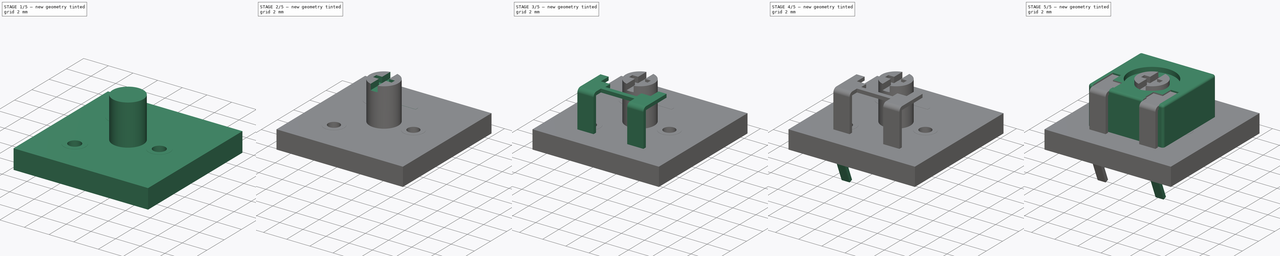
[diagram: build sequence overview — one tinted view per stage of 5, left to right]
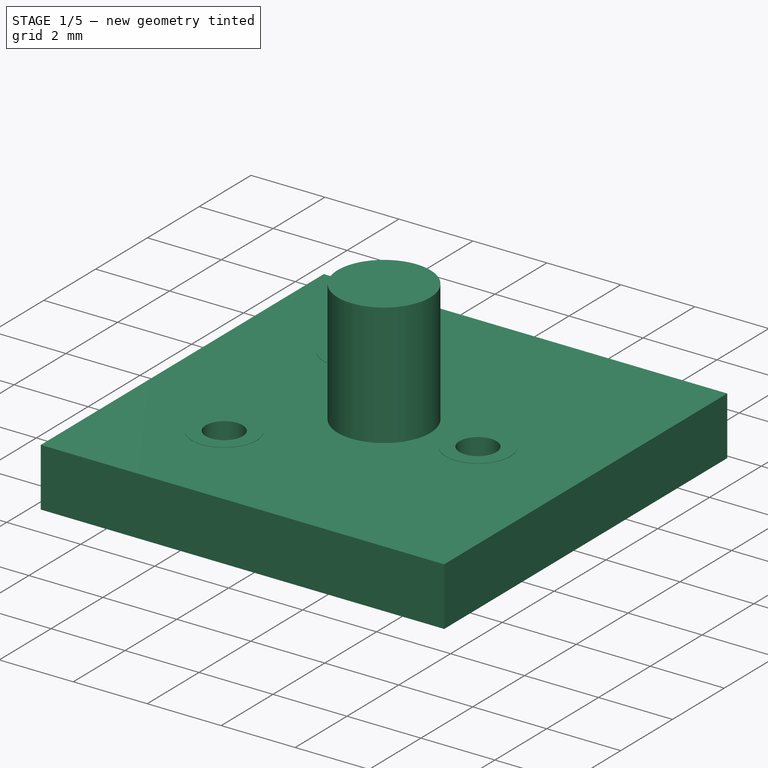
[diagram: stage 1 of 5 — iso view after this stage's code; geometry added in this stage tinted green]
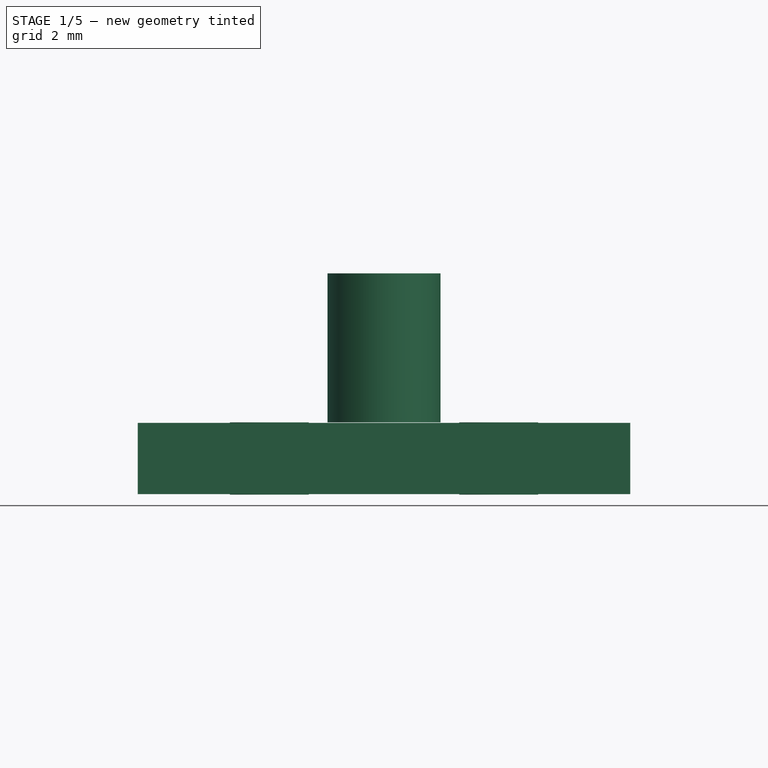
[diagram: stage 1 of 5 — front view after this stage's code; geometry added in this stage tinted green]
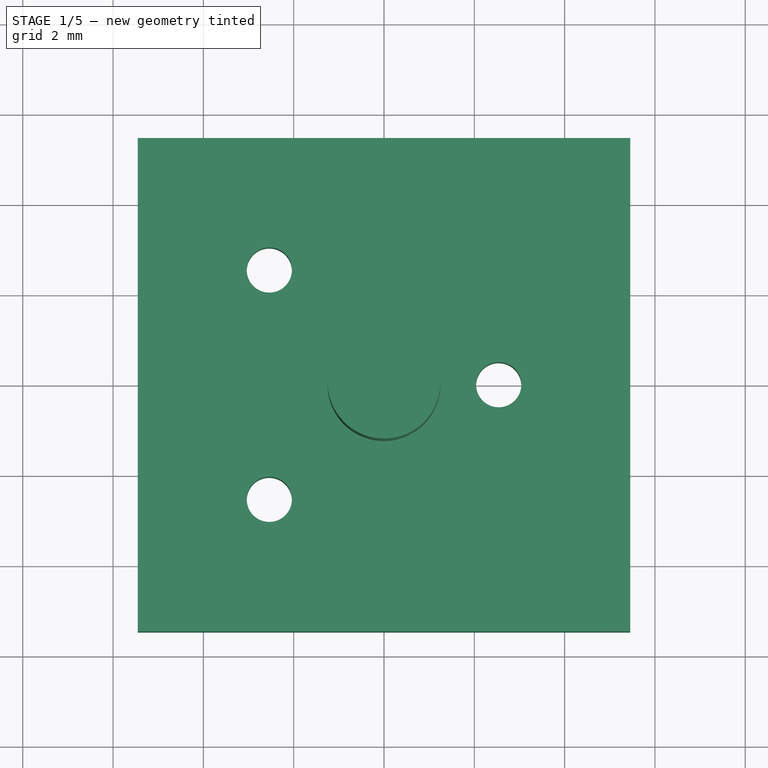
[diagram: stage 1 of 5 — top view after this stage's code; geometry added in this stage tinted green]
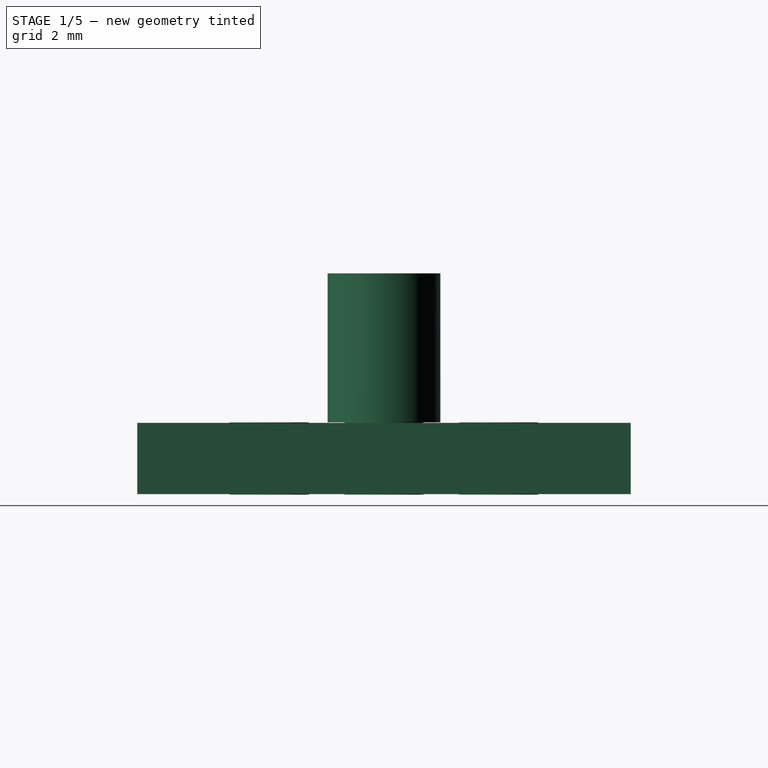
[diagram: stage 1 of 5 — right view after this stage's code; geometry added in this stage tinted green]
FCSTD DOCUMENT  (FreeCAD 0.17R13522 (Git))
Label: RVAR-ACP-CA6-V5
License: All rights reserved
LicenseURL: http://fr.wikipedia.org/wiki/<copyright redacted>
objects: PartDesign::FeaturePython×13, Sketcher::SketchObject×7, Part::Part2DObjectPython×6, Part::FeaturePython×5, PartDesign::Pad×4, PartDesign::Body×4, PartDesign::Pocket×3, PartDesign::Fillet×1, App::DocumentObjectGroup×1, Part::Feature×1
note: 51 computed .brp shape members not serialized (recipe doc carries the construction recipe); baked Part::Feature solids carry a one-line shape summary decoded from their .brp

FEATURE [PartDesign::Body] Body002
  Group = -> [Sketch004,Pad002,Bend010,Bend011,Bend012]
  Origin = -> Origin002
  Tip = -> Bend012
FEATURE [Sketcher::SketchObject] Sketch005
  MapMode = 5
  Support = -> [XY_Plane003]
  sketch-geometry (1):
    g0: Circle CenterX=0 CenterY=0 CenterZ=0 NormalX=0 NormalY=0 NormalZ=1 AngleXU=0 Radius=1.25
  constraints (2):
    c: Coincident(g0,g-1)
    c: Radius(g0) = 1.25
FEATURE [PartDesign::Pad] Pad003
  Length = 3.3
  Length2 = 100
  Profile = -> Sketch005
  Type = 0
FEATURE [PartDesign::Body] Body003
  Group = -> [Sketch005,Pad003,Sketch006,Pocket002]
  Origin = -> Origin003
  Tip = -> Pocket002
FEATURE [Part::FeaturePython] Filk_lines  label="FrontSilk"  # a2plus imported part (geometry in sourceFile) (typed FeaturePython)
  Placement = pos=(0,0,0) rot=(0,0,-1;1.5708rad)
  fixedPosition = true
FEATURE [Part::FeaturePython] TopPads  # a2plus imported part (geometry in sourceFile) (typed FeaturePython)
  Placement = pos=(0,0,0) rot=(0,0,-1;1.5708rad)
  fixedPosition = true
FEATURE [Part::FeaturePython] BotPads  # a2plus imported part (geometry in sourceFile) (typed FeaturePython)
  Placement = pos=(0,0,0) rot=(0,0,-1;1.5708rad)
  fixedPosition = true
FEATURE [Part::FeaturePython] THPs  label="PTHs"  # a2plus imported part (geometry in sourceFile) (typed FeaturePython)
  Placement = pos=(0,0,0) rot=(0,0,-1;1.5708rad)
  fixedPosition = true
FEATURE [Part::FeaturePython] newPCB  label="Pcb"  # a2plus imported part (geometry in sourceFile) (typed FeaturePython)
  Placement = pos=(0,0,0) rot=(0,0,-1;1.5708rad)
  fixedPosition = true
FEATURE [App::DocumentObjectGroup] TRIM_ACP_6_L_fp
  Group = -> [Filk_lines,TopPads,BotPads,THPs,newPCB]
FEATURE [Part::Feature] Shape001  label="RVAR-ACP-CA6-V5"
  shape: bbox 6.9 x 6.5 x 7.672 mm, 182 faces (baked)
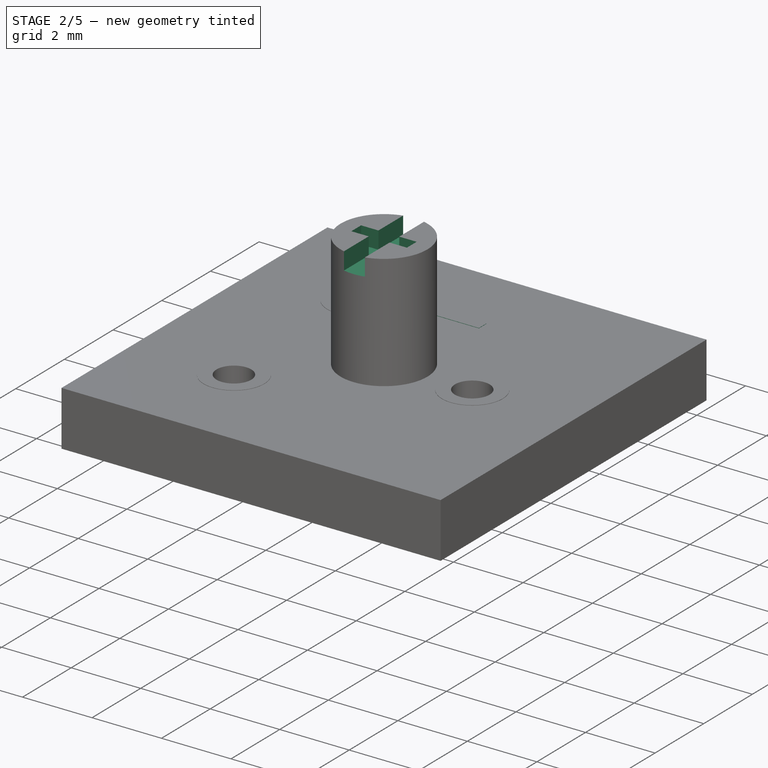
[diagram: stage 2 of 5 — iso view after this stage's code; geometry added in this stage tinted green]
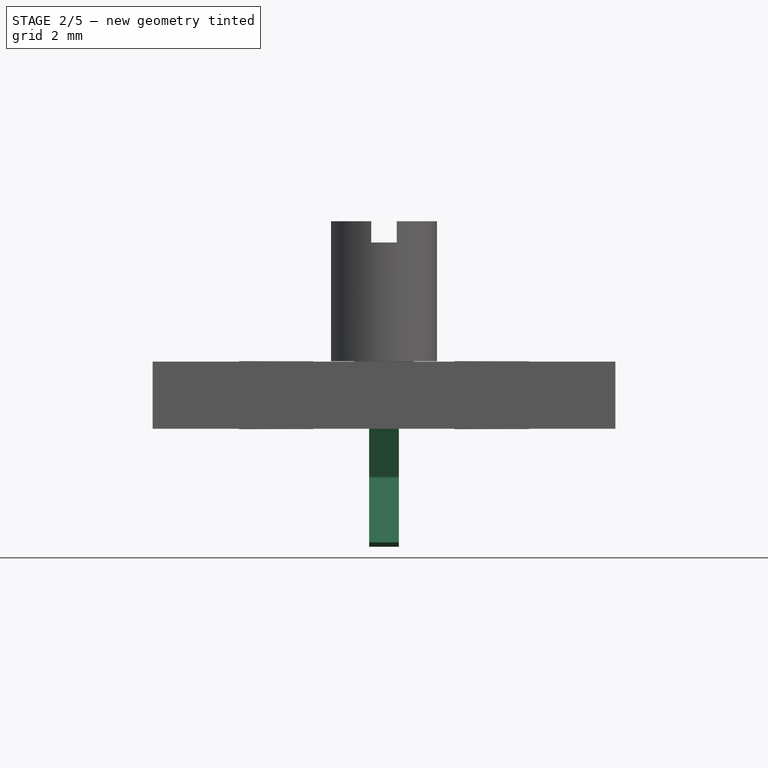
[diagram: stage 2 of 5 — front view after this stage's code; geometry added in this stage tinted green]
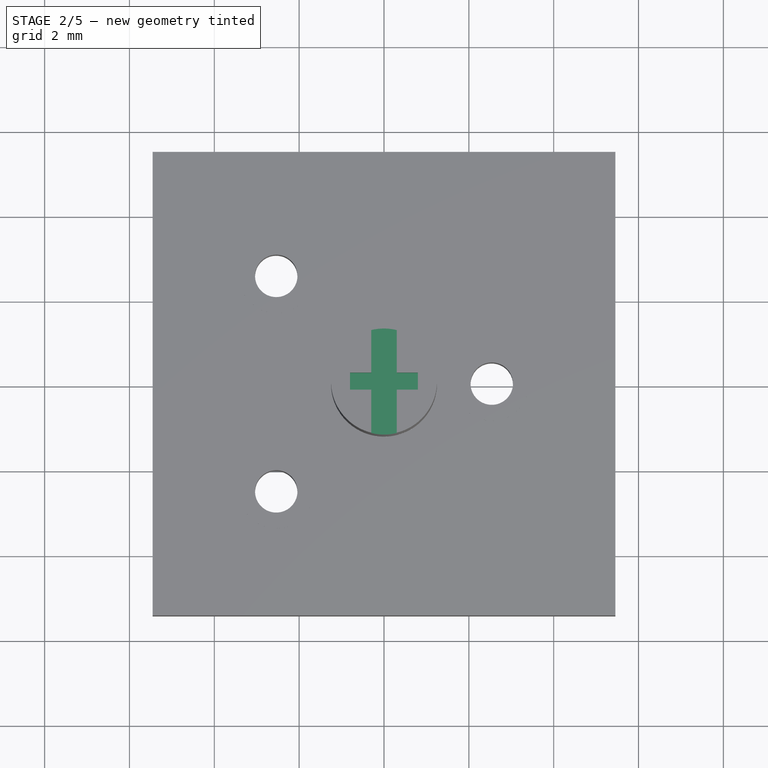
[diagram: stage 2 of 5 — top view after this stage's code; geometry added in this stage tinted green]
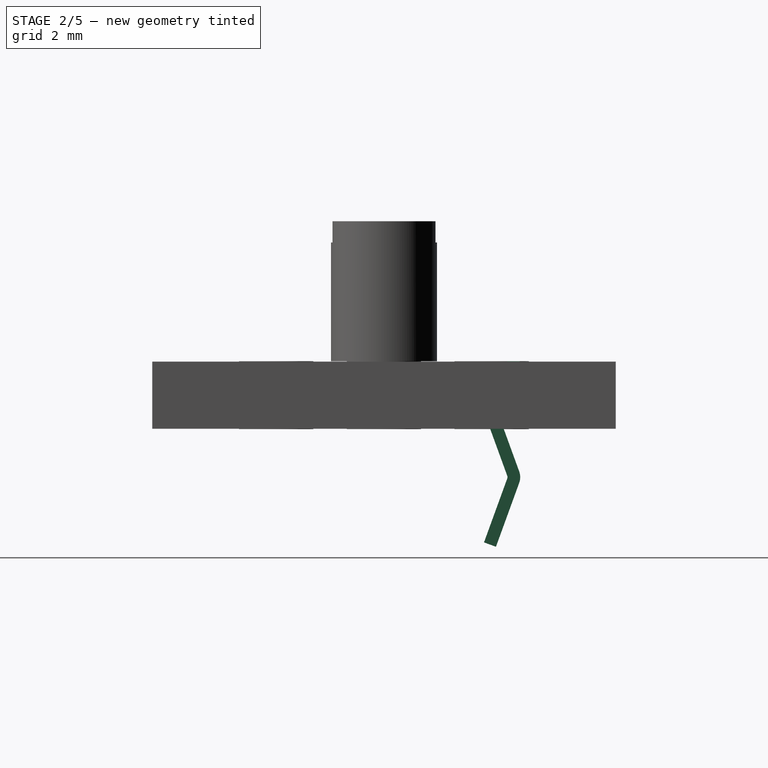
[diagram: stage 2 of 5 — right view after this stage's code; geometry added in this stage tinted green]
FEATURE [PartDesign::Body] Body001
  Group = -> [Sketch003,Pad001,Bend,Bend001,Bend002,Bend003,Bend004,Bend005,Bend006,Bend007,Bend008,Bend009]
  Origin = -> Origin001
  Tip = -> Bend009
FEATURE [Sketcher::SketchObject] Sketch004
  MapMode = 5
  Support = -> [XY_Plane002]
  sketch-geometry (4):
    g0: LineSegment StartX=-0.7 StartY=3.2 StartZ=0 EndX=0.7 EndY=3.2 EndZ=0
    g1: LineSegment StartX=0.7 StartY=3.2 StartZ=0 EndX=0.7 EndY=2.9 EndZ=0
    g2: LineSegment StartX=0.7 StartY=2.9 StartZ=0 EndX=-0.7 EndY=2.9 EndZ=0
    g3: LineSegment StartX=-0.7 StartY=2.9 StartZ=0 EndX=-0.7 EndY=3.2 EndZ=0
  constraints (12):
    c: Coincident(g0,g1)
    c: Coincident(g1,g2)
    c: Coincident(g2,g3)
    c: Coincident(g3,g0)
    c: Horizontal(g0)
    c: Horizontal(g2)
    c: Vertical(g1)
    c: Vertical(g3)
    c: DistanceX(g0,g0) = 1.4
    c: DistanceY(g3,g3) = 0.3
    c: Symmetric(g0,g0,g-2)
    c: DistanceY(g-1,g0) = 3.2
FEATURE [PartDesign::Pad] Pad002
  Length = 0.2
  Length2 = 100
  Profile = -> Sketch004
  Reversed = true
  Type = 0
FEATURE [PartDesign::FeaturePython] Bend010  # WARN: FeaturePython — macro-defined, semantics opaque (R4)
  BaseFeature = -> Pad002
  angle = 40
  baseObject = -> Pad002 [Face6]
  extend1 = 0
  extend2 = 0
  gap1 = 0
  gap2 = 0
  invert = false
  kfactor = 0.45
  length = 0.7
  miterangle1 = 0
  miterangle2 = 0
  radius = 0.1
  reliefType = 0
  reliefd = 1
  reliefw = 0.5
  unfold = false
FEATURE [PartDesign::FeaturePython] Bend011  # WARN: FeaturePython — macro-defined, semantics opaque (R4)
  BaseFeature = -> Bend010
  angle = 60
  baseObject = -> Bend010 [Face1]
  extend1 = -0.35
  extend2 = -0.35
  gap1 = 0
  gap2 = 0
  invert = true
  kfactor = 0.45
  length = 1.6
  miterangle1 = 0
  miterangle2 = 0
  radius = 0.1
  reliefType = 0
  reliefd = 1
  reliefw = 0.5
  unfold = false
FEATURE [Part::Part2DObjectPython] Line  # Draft 2D object (typed FeaturePython)
  ChamferSize = 0
  Closed = false
  End = (0,-2.5,0)
  FilletRadius = 0
  Length = 2.5
  MakeFace = true
  Points = (2) [(0,0,0),(0,-2.5,0)]
  Start = (0,0,0)
  Subdivisions = 0
FEATURE [Part::Part2DObjectPython] Line001  # Draft 2D object (typed FeaturePython)
  ChamferSize = 0
  Closed = false
  End = (0,-2.5,-5)
  FilletRadius = 0
  Length = 5
  MakeFace = true
  Points = (2) [(0,-2.5,0),(0,-2.5,-5)]
  Start = (0,-2.5,0)
  Subdivisions = 0
FEATURE [Part::Part2DObjectPython] Line002  # Draft 2D object (typed FeaturePython)
  ChamferSize = 0
  Closed = false
  End = (0,2.50239,0)
  FilletRadius = 0
  Length = 2.50239
  MakeFace = true
  Points = (2) [(0,0,0),(0,2.50239,0)]
  Start = (0,0,0)
  Subdivisions = 0
FEATURE [Part::Part2DObjectPython] Line003  # Draft 2D object (typed FeaturePython)
  ChamferSize = 0
  Closed = false
  End = (0,2.50239,-5)
  FilletRadius = 0
  Length = 5
  MakeFace = true
  Points = (2) [(0,2.50239,0),(0,2.50239,-5)]
  Start = (0,2.50239,0)
  Subdivisions = 0
FEATURE [Part::Part2DObjectPython] Line004  # Draft 2D object (typed FeaturePython)
  ChamferSize = 0
  Closed = false
  End = (0,-5,-1.3)
  FilletRadius = 0
  Length = 4.6
  MakeFace = true
  Points = (2) [(0,-5,3.3),(0,-5,-1.3)]
  Start = (0,-5,3.3)
  Subdivisions = 0
FEATURE [Part::Part2DObjectPython] Line005  # Draft 2D object (typed FeaturePython)
  ChamferSize = 0
  Closed = false
  End = (0,5,-1.3)
  FilletRadius = 0
  Length = 10
  MakeFace = true
  Points = (2) [(0,-5,-1.3),(0,5,-1.3)]
  Start = (0,-5,-1.3)
  Subdivisions = 0
FEATURE [PartDesign::FeaturePython] Bend012  # WARN: FeaturePython — macro-defined, semantics opaque (R4)
  BaseFeature = -> Bend011
  angle = 40
  baseObject = -> Bend011 [Face1]
  extend1 = 0
  extend2 = 0
  gap1 = 0
  gap2 = 0
  invert = false
  kfactor = 0.45
  length = 1.6
  miterangle1 = 0
  miterangle2 = 0
  radius = 0.1
  reliefType = 0
  reliefd = 1
  reliefw = 0.5
  unfold = false
FEATURE [Sketcher::SketchObject] Sketch006
  MapMode = 5
  Placement = pos=(0,0,3.3) rot=(0,0,1;0rad)
  Support = -> [Pad003]
  sketch-geometry (12):
    g0: LineSegment StartX=-0.8 StartY=0.2 StartZ=0 EndX=-0.8 EndY=-0.2 EndZ=0
    g1: LineSegment StartX=-0.8 StartY=-0.2 StartZ=0 EndX=-0.3 EndY=-0.2 EndZ=0
    g2: LineSegment StartX=-0.3 StartY=-0.2 StartZ=0 EndX=-0.3 EndY=-1.4 EndZ=0
    g3: LineSegment StartX=-0.3 StartY=-1.4 StartZ=0 EndX=0.3 EndY=-1.4 EndZ=0
    g4: LineSegment StartX=0.3 StartY=-1.4 StartZ=0 EndX=0.3 EndY=-0.2 EndZ=0
    g5: LineSegment StartX=0.3 StartY=-0.2 StartZ=0 EndX=0.8 EndY=-0.2 EndZ=0
    g6: LineSegment StartX=0.8 StartY=-0.2 StartZ=0 EndX=0.8 EndY=0.2 EndZ=0
    g7: LineSegment StartX=0.8 StartY=0.2 StartZ=0 EndX=0.3 EndY=0.2 EndZ=0
    g8: LineSegment StartX=0.3 StartY=0.2 StartZ=0 EndX=0.3 EndY=1.4 EndZ=0
    g9: LineSegment StartX=0.3 StartY=1.4 StartZ=0 EndX=-0.3 EndY=1.4 EndZ=0
    g10: LineSegment StartX=-0.3 StartY=1.4 StartZ=0 EndX=-0.3 EndY=0.2 EndZ=0
    g11: LineSegment StartX=-0.3 StartY=0.2 StartZ=0 EndX=-0.8 EndY=0.2 EndZ=0
  constraints (36):
    c: Vertical(g0)
    c: Coincident(g0,g1)
    c: Horizontal(g1)
    c: Coincident(g1,g2)
    c: Vertical(g2)
    c: Coincident(g2,g3)
    c: Horizontal(g3)
    c: Coincident(g3,g4)
    c: Vertical(g4)
    c: Coincident(g4,g5)
    c: Horizontal(g5)
    c: Coincident(g5,g6)
    c: Vertical(g6)
    c: Coincident(g6,g7)
    c: Horizontal(g7)
    c: Coincident(g7,g8)
    c: Vertical(g8)
    c: Coincident(g8,g9)
    c: Horizontal(g9)
    c: Coincident(g9,g10)
    c: Vertical(g10)
    c: Coincident(g10,g11)
    c: Coincident(g11,g0)
    c: Horizontal(g11)
    c: Symmetric(g0,g0,g-1)
    c: Symmetric(g9,g8,g-2)
    c: Horizontal(g1,g4)
    c: Horizontal(g10,g7)
    c: Vertical(g10,g1)
    c: Vertical(g7,g4)
    c: DistanceY(g0,g0) = 0.4
    c: DistanceX(g9,g9) = 0.6
    c: Symmetric(g9,g2,g-1)
    c: DistanceY(g2,g9) = 2.8
    c: Symmetric(g5,g0,g-2)
    c: DistanceX(g0,g5) = 1.6
FEATURE [PartDesign::Pocket] Pocket002
  BaseFeature = -> Pad003
  Length = 0.5
  Length2 = 100
  Profile = -> Sketch006
  Type = 0
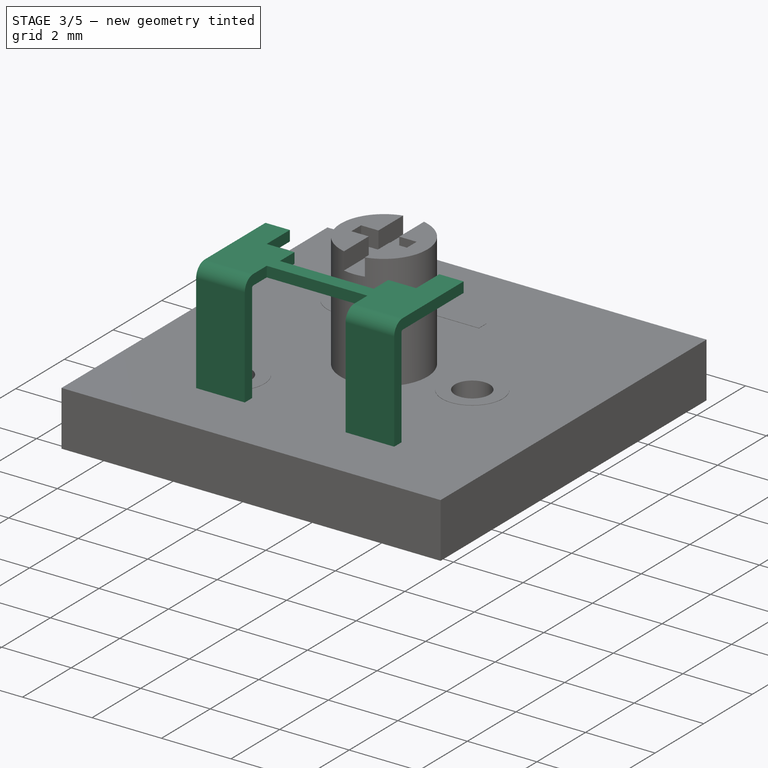
[diagram: stage 3 of 5 — iso view after this stage's code; geometry added in this stage tinted green]
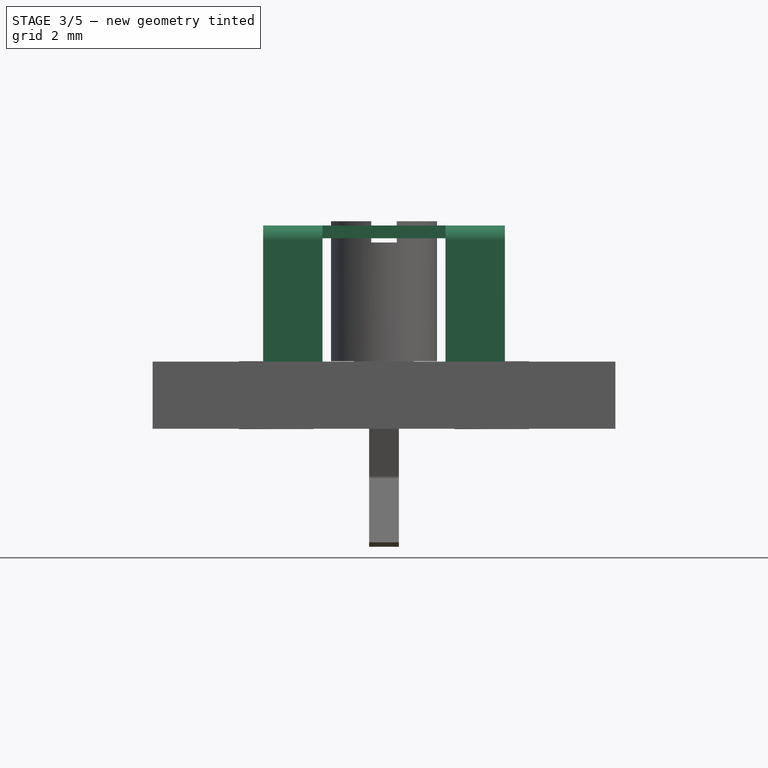
[diagram: stage 3 of 5 — front view after this stage's code; geometry added in this stage tinted green]
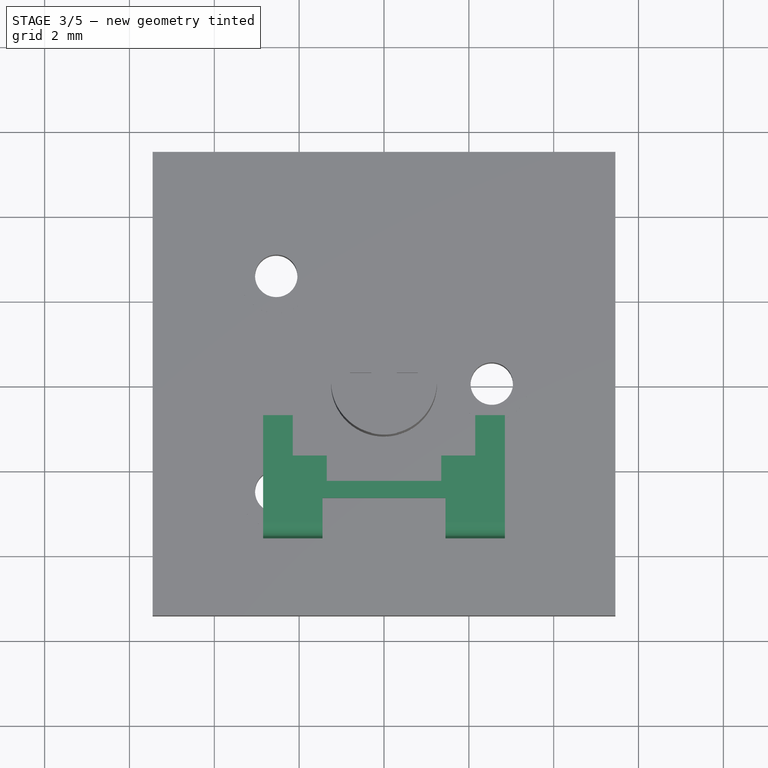
[diagram: stage 3 of 5 — top view after this stage's code; geometry added in this stage tinted green]
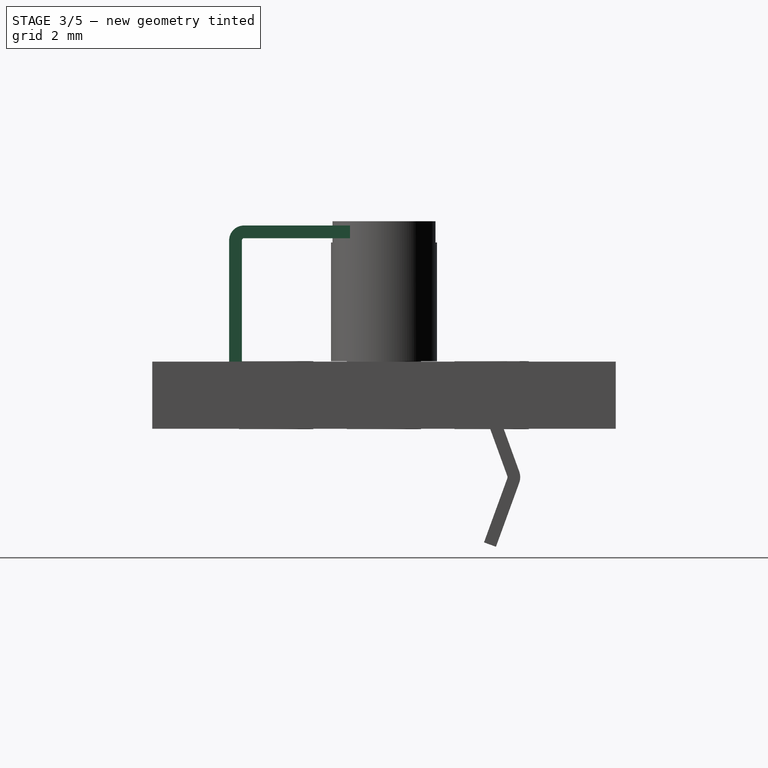
[diagram: stage 3 of 5 — right view after this stage's code; geometry added in this stage tinted green]
FEATURE [PartDesign::Body] Body
  Group = -> [Sketch,Pad,Sketch001,Pocket,Sketch002,Pocket001,Fillet]
  Origin = -> Origin
  Tip = -> Fillet
FEATURE [Sketcher::SketchObject] Sketch003
  MapMode = 2
  Placement = pos=(0,0,2.9) rot=(0,0,1;0rad)
  sketch-geometry (16):
    g0: LineSegment StartX=-2.85 StartY=-0.8 StartZ=0 EndX=-2.15 EndY=-0.8 EndZ=0
    g1: LineSegment StartX=-2.15 StartY=-0.8 StartZ=0 EndX=-2.15 EndY=-1.75 EndZ=0
    g2: LineSegment StartX=-2.15 StartY=-1.75 StartZ=0 EndX=-1.35 EndY=-1.75 EndZ=0
    g3: LineSegment StartX=-1.45 StartY=-2.75 StartZ=0 EndX=-1.45 EndY=-3.3 EndZ=0
    g4: LineSegment StartX=-1.45 StartY=-3.3 StartZ=0 EndX=-2.85 EndY=-3.3 EndZ=0
    g5: LineSegment StartX=-2.85 StartY=-3.3 StartZ=0 EndX=-2.85 EndY=-0.8 EndZ=0
    g6: LineSegment StartX=2.85 StartY=-3.3 StartZ=0 EndX=2.85 EndY=-0.8 EndZ=0
    g7: LineSegment StartX=2.85 StartY=-0.8 StartZ=0 EndX=2.15 EndY=-0.8 EndZ=0
    g8: LineSegment StartX=2.15 StartY=-0.8 StartZ=0 EndX=2.15 EndY=-1.75 EndZ=0
    g9: LineSegment StartX=2.15 StartY=-1.75 StartZ=0 EndX=1.35 EndY=-1.75 EndZ=0
    g10: LineSegment StartX=1.45 StartY=-2.75 StartZ=0 EndX=1.45 EndY=-3.3 EndZ=0
    g11: LineSegment StartX=1.45 StartY=-3.3 StartZ=0 EndX=2.85 EndY=-3.3 EndZ=0
    g12: LineSegment StartX=-1.45 StartY=-2.75 StartZ=0 EndX=1.45 EndY=-2.75 EndZ=0
    g13: LineSegment StartX=-1.35 StartY=-1.75 StartZ=0 EndX=-1.35 EndY=-2.35 EndZ=0
    g14: LineSegment StartX=-1.35 StartY=-2.35 StartZ=0 EndX=1.35 EndY=-2.35 EndZ=0
    g15: LineSegment StartX=1.35 StartY=-2.35 StartZ=0 EndX=1.35 EndY=-1.75 EndZ=0
  constraints (47):
    c: Horizontal(g0)
    c: Coincident(g0,g1)
    c: Vertical(g1)
    c: Coincident(g1,g2)
    c: Horizontal(g2)
    c: Vertical(g3)
    c: Coincident(g3,g4)
    c: Horizontal(g4)
    c: Coincident(g4,g5)
    c: Coincident(g5,g0)
    c: Vertical(g5)
    c: DistanceY(g5,g5) = 2.5
    c: DistanceY(g1,g1) = 0.95
    c: DistanceX(g0,g0) = 0.7
    c: DistanceX(g2,g2) = 0.8
    c: DistanceX(g4,g4) = 1.4
    c: Vertical(g6)
    c: Coincident(g6,g7)
    c: Horizontal(g7)
    c: Coincident(g7,g8)
    c: Vertical(g8)
    c: Coincident(g8,g9)
    c: Horizontal(g9)
    c: Vertical(g10)
    c: Coincident(g10,g11)
    c: Horizontal(g11)
    c: Coincident(g6,g11)
    c: DistanceX(g11,g11) = 1.4
    c: DistanceX(g7,g7) = 0.7
    c: DistanceX(g9,g9) = 0.8
    c: DistanceY(g8,g8) = 0.95
    c: Symmetric(g3,g10,g-2)
    c: DistanceX(g4,g6) = 5.7
    c: DistanceY(g4,g-1) = 3.3
    c: Coincident(g12,g3)
    c: Coincident(g12,g10)
    c: Horizontal(g12)
    c: Coincident(g13,g2)
    c: Vertical(g13)
    c: Coincident(g14,g13)
    c: Horizontal(g14)
    c: Coincident(g15,g14)
    c: Coincident(g15,g9)
    c: Vertical(g15)
    c: DistanceY(g3,g2) = 1
    c: DistanceY(g3,g13) = 0.4
    c: Horizontal(g9,g2)
FEATURE [PartDesign::Pad] Pad001
  Length = 0.3
  Length2 = 100
  Placement = pos=(0,0,2.9) rot=(0,0,1;0rad)
  Profile = -> Sketch003
  Type = 0
FEATURE [PartDesign::FeaturePython] Bend  # WARN: FeaturePython — macro-defined, semantics opaque (R4)
  BaseFeature = -> Pad001
  angle = 90
  baseObject = -> Pad001 [Face2]
  extend1 = 0
  extend2 = 0
  gap1 = 0
  gap2 = 0
  invert = true
  kfactor = 0.45
  length = 3
  miterangle1 = 0
  miterangle2 = 0
  radius = 0.05
  reliefType = 0
  reliefd = 1
  reliefw = 0.5
  unfold = false
FEATURE [PartDesign::FeaturePython] Bend001  # WARN: FeaturePython — macro-defined, semantics opaque (R4)
  BaseFeature = -> Bend
  angle = 90
  baseObject = -> Bend [Face25]
  extend1 = 0
  extend2 = 0
  gap1 = 0
  gap2 = 0
  invert = true
  kfactor = 0.45
  length = 3
  miterangle1 = 0
  miterangle2 = 0
  radius = 0.05
  reliefType = 0
  reliefd = 1
  reliefw = 0.5
  unfold = false
FEATURE [PartDesign::FeaturePython] Bend002  # WARN: FeaturePython — macro-defined, semantics opaque (R4)
  BaseFeature = -> Bend001
  angle = 90
  baseObject = -> Bend001 [Face34]
  extend1 = 0
  extend2 = 0
  gap1 = 0
  gap2 = 0
  invert = true
  kfactor = 0.45
  length = 0.5
  miterangle1 = 0
  miterangle2 = 0
  radius = 0.1
  reliefType = 0
  reliefd = 1
  reliefw = 0.5
  unfold = false
FEATURE [PartDesign::FeaturePython] Bend003  # WARN: FeaturePython — macro-defined, semantics opaque (R4)
  BaseFeature = -> Bend002
  angle = 90
  baseObject = -> Bend002 [Face42]
  extend1 = 0
  extend2 = 0
  gap1 = 0
  gap2 = 0
  invert = true
  kfactor = 0.45
  length = 0.5
  miterangle1 = 0
  miterangle2 = 0
  radius = 0.1
  reliefType = 0
  reliefd = 1
  reliefw = 0.5
  unfold = false
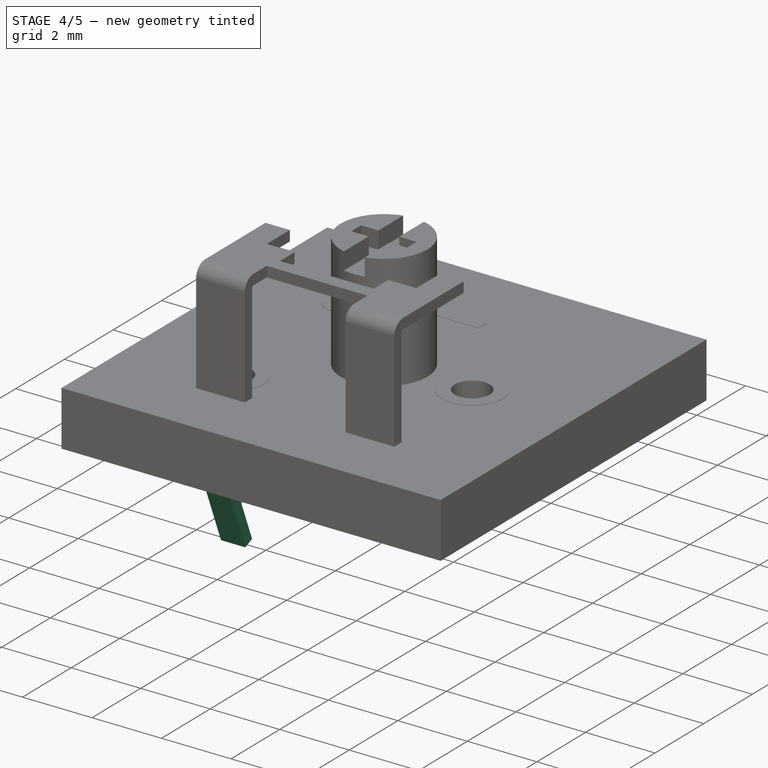
[diagram: stage 4 of 5 — iso view after this stage's code; geometry added in this stage tinted green]
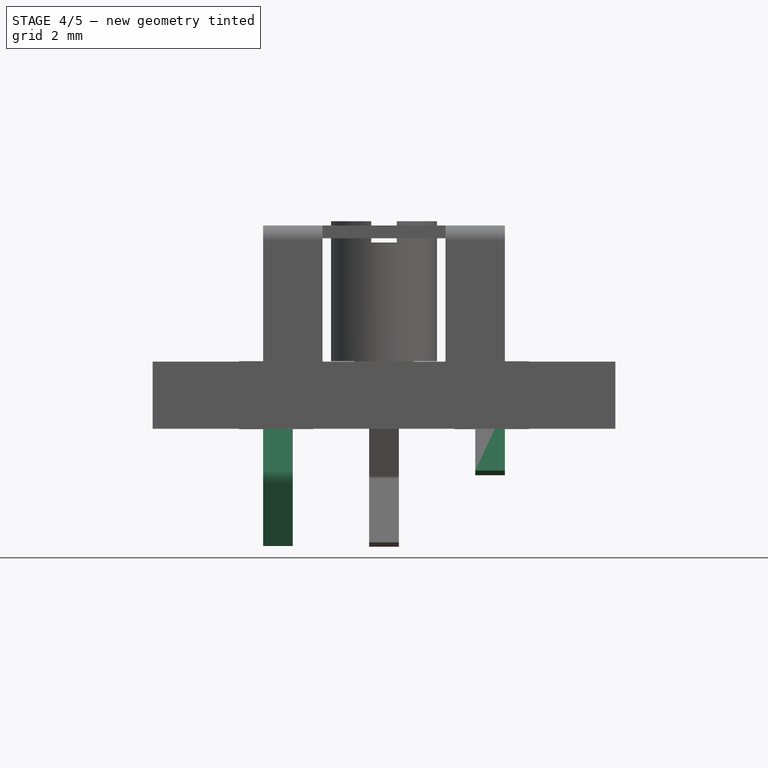
[diagram: stage 4 of 5 — front view after this stage's code; geometry added in this stage tinted green]
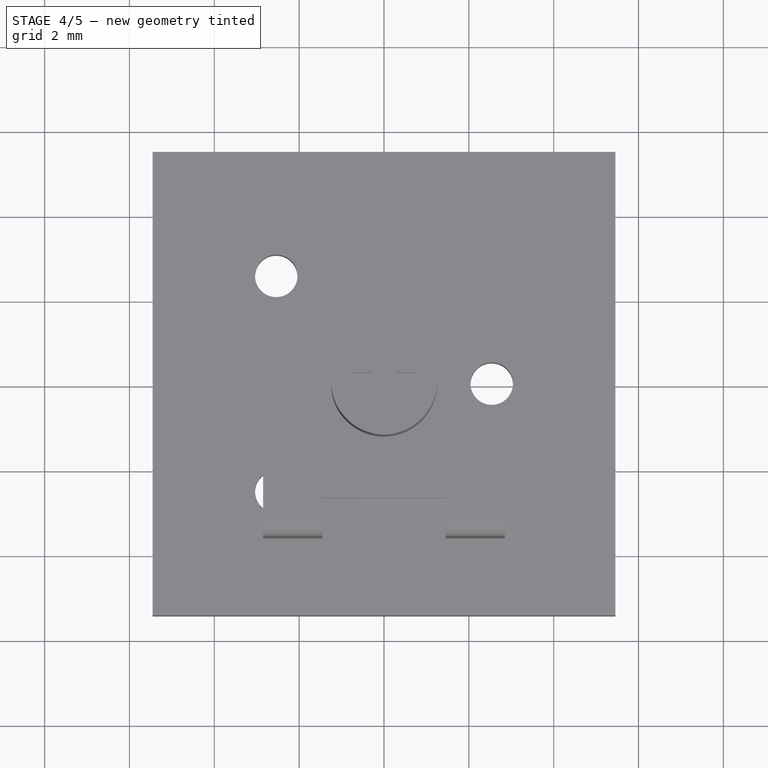
[diagram: stage 4 of 5 — top view after this stage's code; geometry added in this stage tinted green]
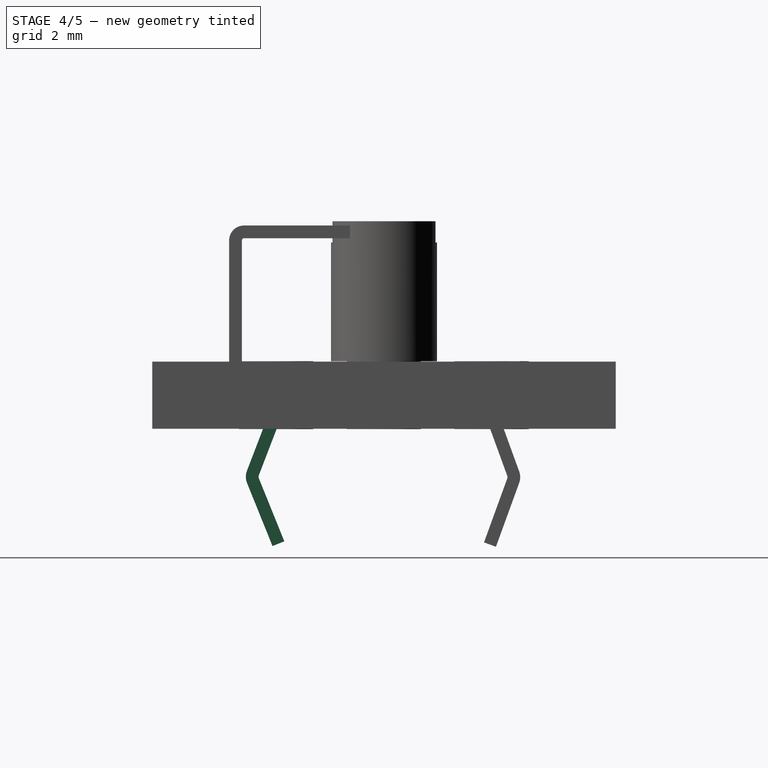
[diagram: stage 4 of 5 — right view after this stage's code; geometry added in this stage tinted green]
FEATURE [PartDesign::FeaturePython] Bend004  # WARN: FeaturePython — macro-defined, semantics opaque (R4)
  BaseFeature = -> Bend003
  angle = 90
  baseObject = -> Bend003 [Face50]
  extend1 = 0
  extend2 = 0
  gap1 = 0
  gap2 = 0
  invert = false
  kfactor = 0.45
  length = 0.4
  miterangle1 = 0
  miterangle2 = 0
  radius = 0.1
  reliefType = 0
  reliefd = 1
  reliefw = 0.5
  unfold = false
FEATURE [PartDesign::FeaturePython] Bend005  # WARN: FeaturePython — macro-defined, semantics opaque (R4)
  BaseFeature = -> Bend004
  angle = 90
  baseObject = -> Bend004 [Face58]
  extend1 = 0
  extend2 = 0
  gap1 = 0
  gap2 = 0
  invert = false
  kfactor = 0.45
  length = 0.4
  miterangle1 = 0
  miterangle2 = 0
  radius = 0.1
  reliefType = 0
  reliefd = 1
  reliefw = 0.5
  unfold = false
FEATURE [PartDesign::FeaturePython] Bend006  # WARN: FeaturePython — macro-defined, semantics opaque (R4)
  BaseFeature = -> Bend005
  angle = 21
  baseObject = -> Bend005 [Face66]
  extend1 = -0.7
  extend2 = 0
  gap1 = 0
  gap2 = 0
  invert = false
  kfactor = 0.45
  length = 1.6
  miterangle1 = 0
  miterangle2 = 0
  radius = 0.1
  reliefType = 0
  reliefd = 1
  reliefw = 0.5
  unfold = false
FEATURE [PartDesign::FeaturePython] Bend007  # WARN: FeaturePython — macro-defined, semantics opaque (R4)
  BaseFeature = -> Bend006
  angle = 43
  baseObject = -> Bend006 [Face1]
  extend1 = 0
  extend2 = 0
  gap1 = 0
  gap2 = 0
  invert = true
  kfactor = 0.45
  length = 1.6
  miterangle1 = 0
  miterangle2 = 0
  radius = 0.1
  reliefType = 0
  reliefd = 1
  reliefw = 0.5
  unfold = false
FEATURE [PartDesign::FeaturePython] Bend008  # WARN: FeaturePython — macro-defined, semantics opaque (R4)
  BaseFeature = -> Bend007
  angle = 21
  baseObject = -> Bend007 [Face83]
  extend1 = -0.7
  extend2 = 0
  gap1 = 0
  gap2 = 0
  invert = false
  kfactor = 0.45
  length = 1.6
  miterangle1 = 0
  miterangle2 = 0
  radius = 0.1
  reliefType = 0
  reliefd = 1
  reliefw = 0.5
  unfold = false
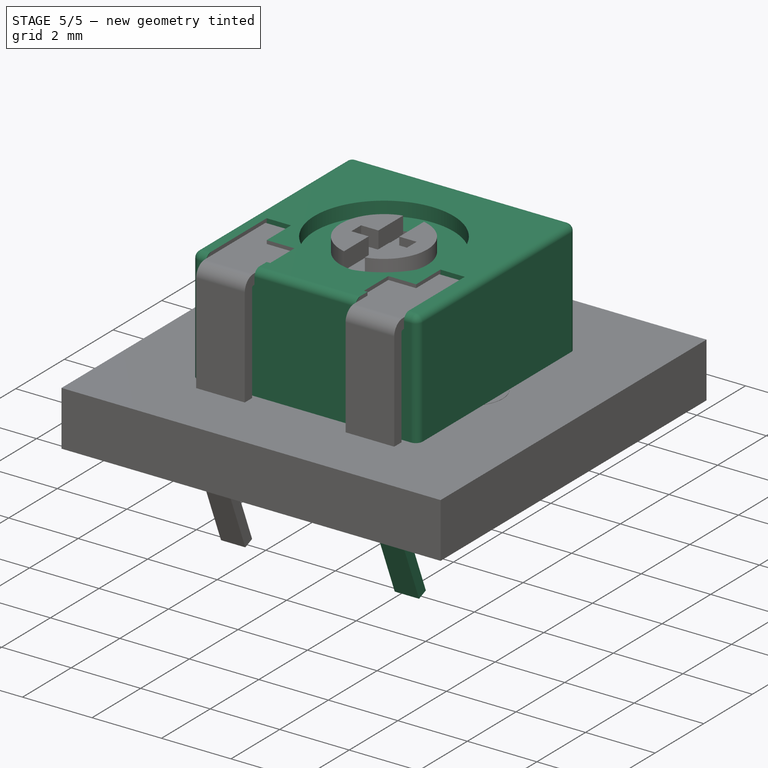
[diagram: stage 5 of 5 — iso view after this stage's code; geometry added in this stage tinted green]
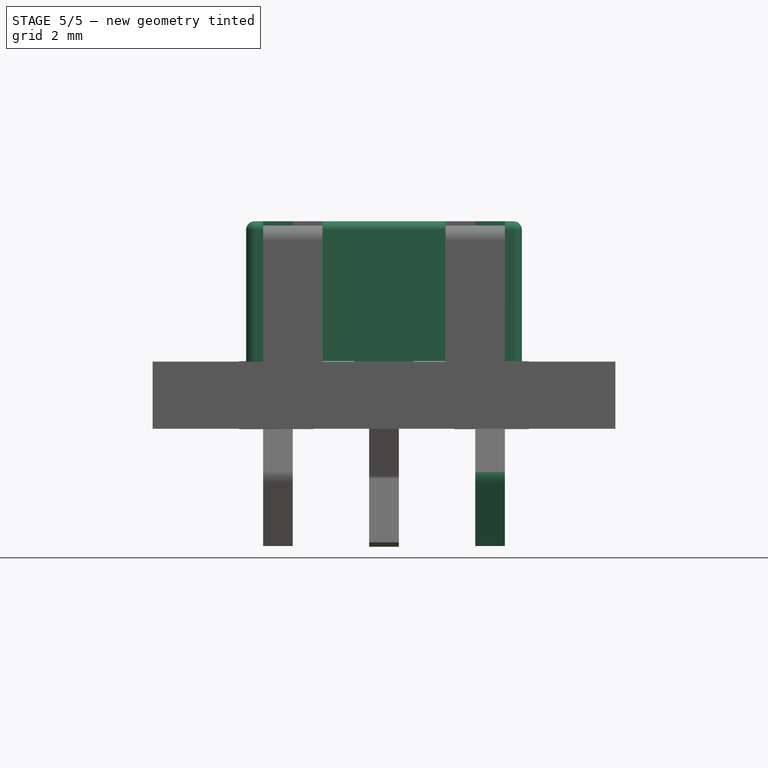
[diagram: stage 5 of 5 — front view after this stage's code; geometry added in this stage tinted green]
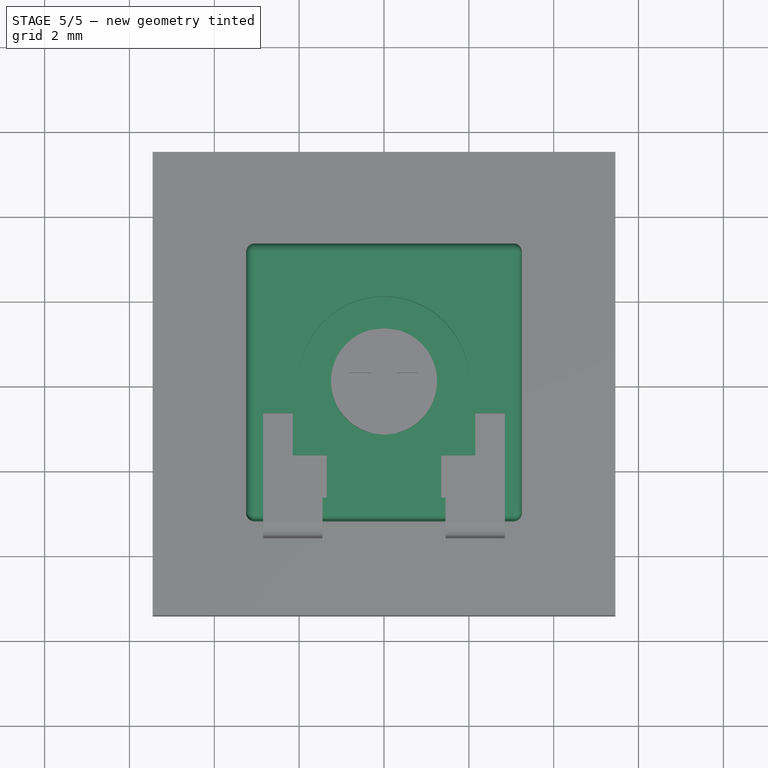
[diagram: stage 5 of 5 — top view after this stage's code; geometry added in this stage tinted green]
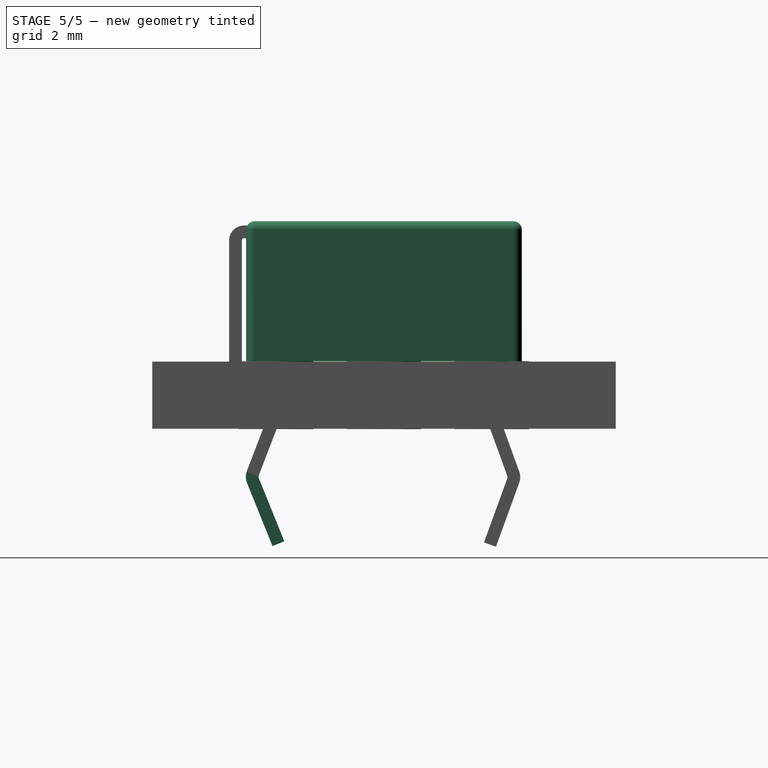
[diagram: stage 5 of 5 — right view after this stage's code; geometry added in this stage tinted green]
FEATURE [Sketcher::SketchObject] Sketch
  MapMode = 5
  Support = -> [XY_Plane]
  sketch-geometry (4):
    g0: LineSegment StartX=-3.25 StartY=3.25 StartZ=0 EndX=3.25 EndY=3.25 EndZ=0
    g1: LineSegment StartX=3.25 StartY=3.25 StartZ=0 EndX=3.25 EndY=-3.25 EndZ=0
    g2: LineSegment StartX=3.25 StartY=-3.25 StartZ=0 EndX=-3.25 EndY=-3.25 EndZ=0
    g3: LineSegment StartX=-3.25 StartY=-3.25 StartZ=0 EndX=-3.25 EndY=3.25 EndZ=0
  constraints (12):
    c: Coincident(g0,g1)
    c: Coincident(g1,g2)
    c: Coincident(g2,g3)
    c: Coincident(g3,g0)
    c: Horizontal(g0)
    c: Horizontal(g2)
    c: Vertical(g1)
    c: Vertical(g3)
    c: DistanceX(g0,g0) = 6.5
    c: DistanceY(g1,g1) = 6.5
    c: Symmetric(g0,g0,g-2)
    c: Symmetric(g0,g1,g-1)
FEATURE [PartDesign::Pad] Pad
  Length = 3.3
  Length2 = 100
  Profile = -> Sketch
  Type = 0
FEATURE [Sketcher::SketchObject] Sketch001
  MapMode = 5
  Placement = pos=(0,0,3.3) rot=(0,0,1;0rad)
  Support = -> [Pad]
  sketch-geometry (1):
    g0: Circle CenterX=0 CenterY=0 CenterZ=0 NormalX=0 NormalY=0 NormalZ=1 AngleXU=0 Radius=1.25
  constraints (2):
    c: Coincident(g0,g-1)
    c: Radius(g0) = 1.25
FEATURE [PartDesign::Pocket] Pocket
  BaseFeature = -> Pad
  Length = 3.3
  Length2 = 100
  Profile = -> Sketch001
  Type = 0
FEATURE [Sketcher::SketchObject] Sketch002
  MapMode = 5
  Placement = pos=(0,0,3.3) rot=(0,0,1;0rad)
  Support = -> [Pocket]
  expr: Constraints[36] = 5 + 0.69999999999999996
  expr: Constraints[39] = 6.5 / 2
  sketch-geometry (17):
    g0: Circle CenterX=0 CenterY=0 CenterZ=0 NormalX=0 NormalY=0 NormalZ=1 AngleXU=0 Radius=2
    g1: LineSegment StartX=-2.85 StartY=-0.75 StartZ=0 EndX=-2.15 EndY=-0.75 EndZ=0
    g2: LineSegment StartX=-2.15 StartY=-0.75 StartZ=0 EndX=-2.15 EndY=-1.75 EndZ=0
    g3: LineSegment StartX=-2.15 StartY=-1.75 StartZ=0 EndX=-1.35 EndY=-1.75 EndZ=0
    g4: LineSegment StartX=-1.35 StartY=-1.75 StartZ=0 EndX=-1.35 EndY=-2.75 EndZ=0
    g5: LineSegment StartX=-1.35 StartY=-2.75 StartZ=0 EndX=-1.45 EndY=-2.75 EndZ=0
    g6: LineSegment StartX=-1.45 StartY=-2.75 StartZ=0 EndX=-1.45 EndY=-3.25 EndZ=0
    g7: LineSegment StartX=-1.45 StartY=-3.25 StartZ=0 EndX=-2.85 EndY=-3.25 EndZ=0
    g8: LineSegment StartX=-2.85 StartY=-3.25 StartZ=0 EndX=-2.85 EndY=-0.75 EndZ=0
    g9: LineSegment StartX=2.15 StartY=-0.75 StartZ=0 EndX=2.85 EndY=-0.75 EndZ=0
    g10: LineSegment StartX=2.85 StartY=-0.75 StartZ=0 EndX=2.85 EndY=-3.25 EndZ=0
    g11: LineSegment StartX=2.85 StartY=-3.25 StartZ=0 EndX=1.45 EndY=-3.25 EndZ=0
    g12: LineSegment StartX=1.45 StartY=-3.25 StartZ=0 EndX=1.45 EndY=-2.75 EndZ=0
    g13: LineSegment StartX=1.45 StartY=-2.75 StartZ=0 EndX=1.35 EndY=-2.75 EndZ=0
    g14: LineSegment StartX=1.35 StartY=-2.75 StartZ=0 EndX=1.35 EndY=-1.75 EndZ=0
    g15: LineSegment StartX=1.35 StartY=-1.75 StartZ=0 EndX=2.15 EndY=-1.75 EndZ=0
    g16: LineSegment StartX=2.15 StartY=-1.75 StartZ=0 EndX=2.15 EndY=-0.75 EndZ=0
  constraints (48):
    c: Coincident(g0,g-1)
    c: Radius(g0) = 2
    c: Horizontal(g1)
    c: Coincident(g1,g2)
    c: Vertical(g2)
    c: Coincident(g2,g3)
    c: Horizontal(g3)
    c: Coincident(g3,g4)
    c: Vertical(g4)
    c: Coincident(g4,g5)
    c: Horizontal(g5)
    c: Coincident(g5,g6)
    c: Vertical(g6)
    c: Coincident(g6,g7)
    c: Horizontal(g7)
    c: Coincident(g7,g8)
    c: Coincident(g8,g1)
    c: Vertical(g8)
    c: Horizontal(g9)
    c: Coincident(g9,g10)
    c: Vertical(g10)
    c: Coincident(g10,g11)
    c: Horizontal(g11)
    c: Coincident(g11,g12)
    c: Vertical(g12)
    c: Coincident(g12,g13)
    c: Horizontal(g13)
    c: Coincident(g13,g14)
    c: Vertical(g14)
    c: Coincident(g14,g15)
    c: Horizontal(g15)
    c: Coincident(g15,g16)
    c: Coincident(g16,g9)
    c: Vertical(g16)
    c: DistanceX(g7,g7) = 1.4
    c: DistanceX(g11,g11) = 1.4
    c: DistanceX(g7,g10) = 5.7
    c: DistanceY(g8,g8) = 2.5
    c: DistanceY(g10,g10) = 2.5
    c: DistanceY(g7,g-1) = 3.25
    c: Symmetric(g6,g11,g-2)
    c: Symmetric(g4,g13,g-2)
    c: Symmetric(g3,g14,g-2)
    c: Symmetric(g1,g9,g-2)
    c: DistanceY(g4,g4) = 1
    c: DistanceX(g1,g1) = 0.7
    c: DistanceY(g2,g2) = 1
    c: DistanceX(g3,g3) = 0.8
FEATURE [PartDesign::Pocket] Pocket001
  BaseFeature = -> Pocket
  Length = 0.4
  Length2 = 100
  Profile = -> Sketch002
  Type = 0
FEATURE [PartDesign::Fillet] Fillet
  Base = -> Pocket001 [Edge5,Edge8,Edge2,Edge1,Edge21,Edge13,Edge29,Edge10,Edge7,Edge4]
  BaseFeature = -> Pocket001
  Radius = 0.2
FEATURE [PartDesign::FeaturePython] Bend009  # WARN: FeaturePython — macro-defined, semantics opaque (R4)
  BaseFeature = -> Bend008
  angle = 43
  baseObject = -> Bend008 [Face1]
  extend1 = 0
  extend2 = 0
  gap1 = 0
  gap2 = 0
  invert = true
  kfactor = 0.45
  length = 1.6
  miterangle1 = 0
  miterangle2 = 0
  radius = 0.1
  reliefType = 0
  reliefd = 1
  reliefw = 0.5
  unfold = false
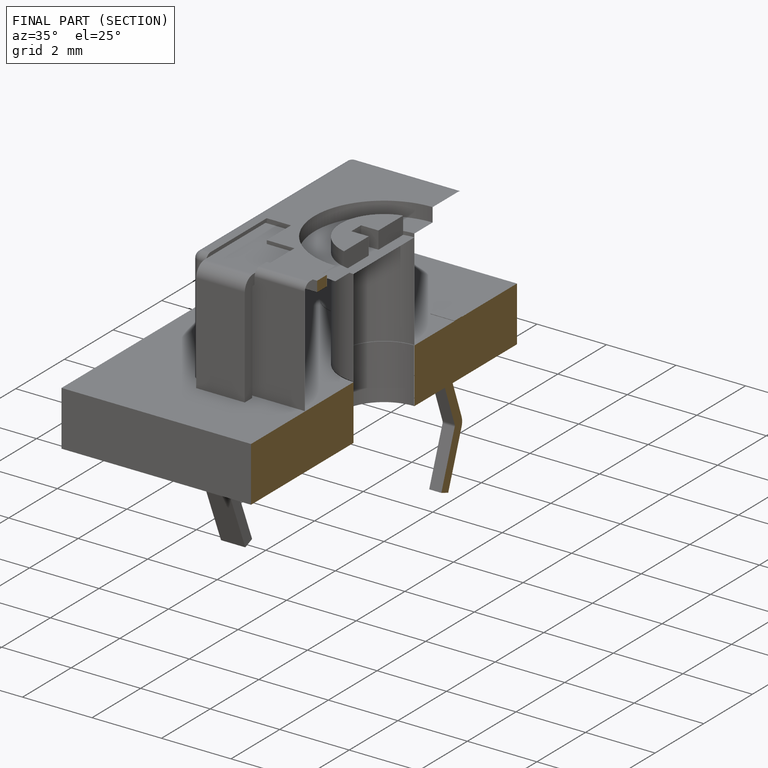
[diagram: finished part — half-section view (interior)]
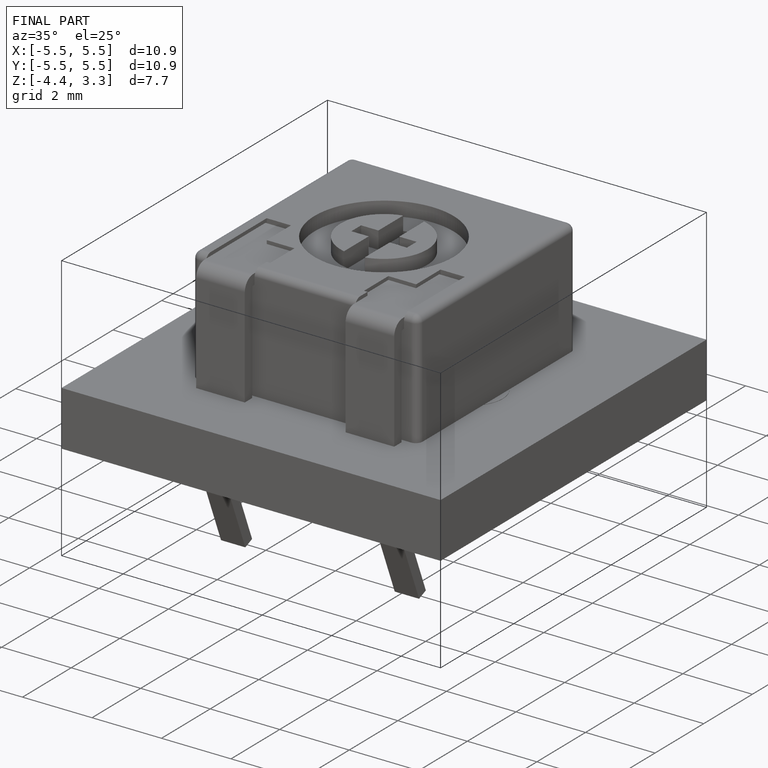
[diagram: finished part — iso view with bounding-box wireframe]
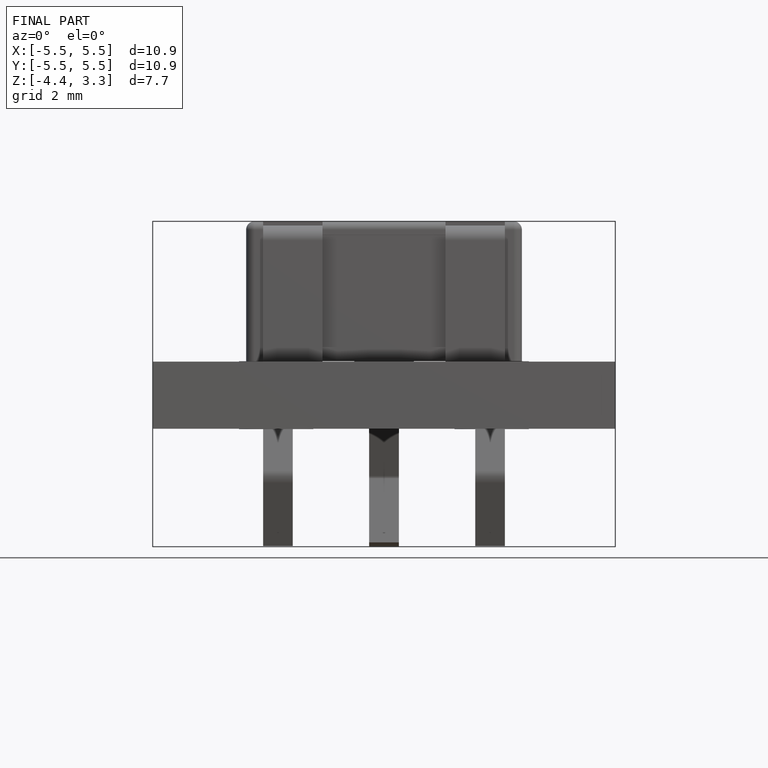
[diagram: finished part — front view with bounding-box wireframe]
